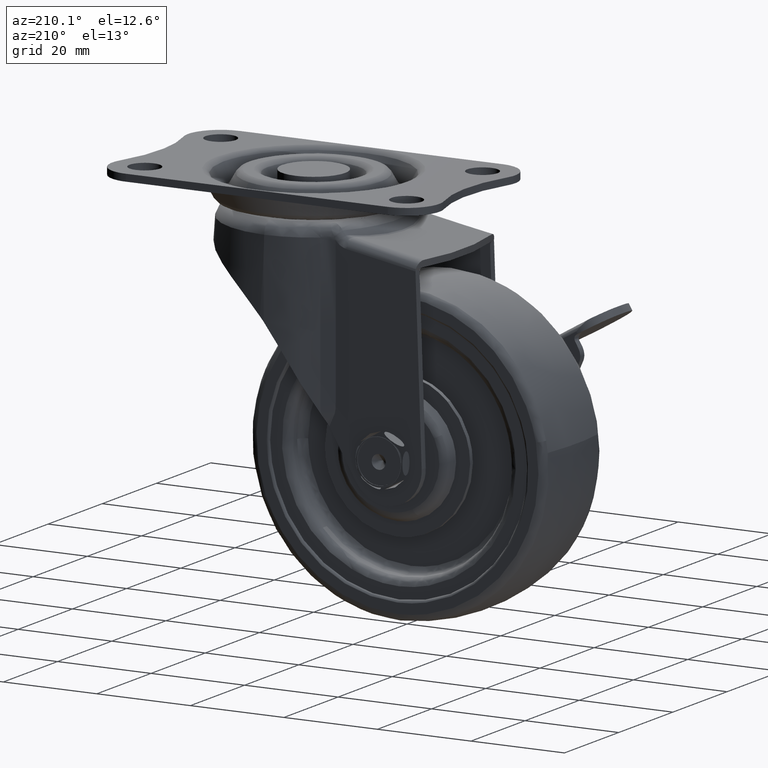
[diagram: clean part render]
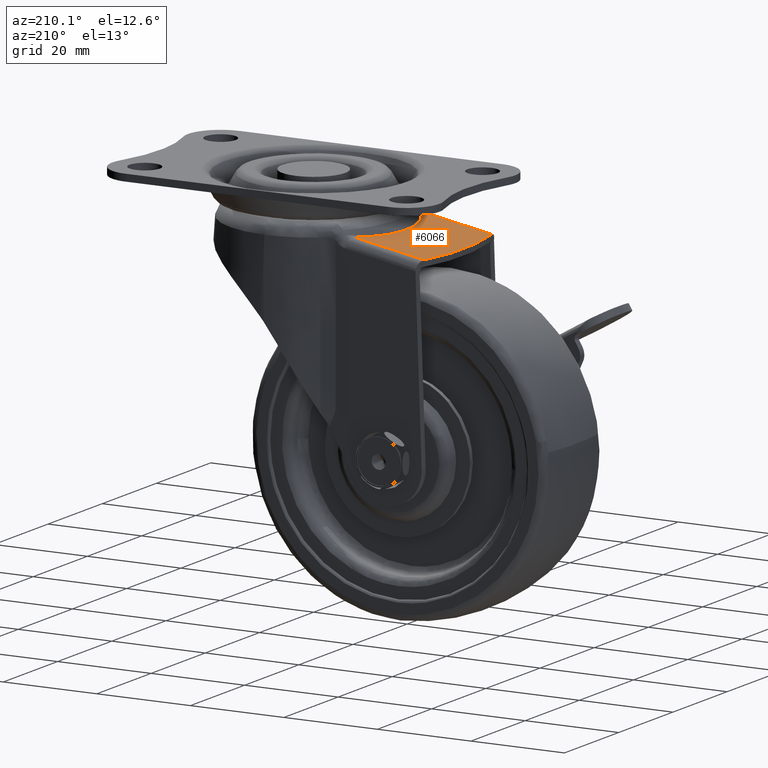
[diagram: same view with one face highlighted and labeled with its STEP entity id]
A machine part, auxiliary view. The second image highlights one B-rep face of the part: STEP entity #6066.
In plain terms, the highlighted face is a freeform B-spline surface patch.
Its self-contained STEP definition (entity closure, byte-faithful):
#3889=CARTESIAN_POINT('',(-15.797396065596800,-12.500016534822940,-7.205750666581940));
#3890=VERTEX_POINT('',#3889);
#3902=CARTESIAN_POINT('',(-30.858344562454050,-12.500016196939679,-9.861400890232220));
#3903=VERTEX_POINT('',#3902);
#3904=CARTESIAN_POINT('',(-30.858344562454050,-12.500016196939679,-9.861400890232220));
#3905=CARTESIAN_POINT('',(-15.797396065596800,-12.500016534822940,-7.205750666581940));
#3906=QUASI_UNIFORM_CURVE('',1,(#3904,#3905),.UNSPECIFIED.,.F.,.U.);
#3907=EDGE_CURVE('',#3903,#3890,#3906,.T.);
#4226=CARTESIAN_POINT('',(-15.797396065596800,12.500016534822940,-7.205750666581940));
#4227=VERTEX_POINT('',#4226);
#4256=CARTESIAN_POINT('',(-30.858344562454050,12.500016196939679,-9.861400890232220));
#4257=VERTEX_POINT('',#4256);
#4284=CARTESIAN_POINT('',(-15.797396065596800,12.500016534822940,-7.205750666581940));
#4285=CARTESIAN_POINT('',(-30.858344562454050,12.500016196939679,-9.861400890232220));
#4286=QUASI_UNIFORM_CURVE('',1,(#4284,#4285),.UNSPECIFIED.,.F.,.U.);
#4287=EDGE_CURVE('',#4227,#4257,#4286,.T.);
#5346=CARTESIAN_POINT('',(-15.797396065596800,-12.500016534822940,-7.205750666581940));
#5347=CARTESIAN_POINT('',(-16.431019511877839,-11.589009123239030,-7.317474795692936));
#5348=CARTESIAN_POINT('',(-16.991101389916459,-10.637728013396430,-7.416231639093590));
#5349=CARTESIAN_POINT('',(-17.722048673436031,-9.151018360559675,-7.545116439340984));
#5350=CARTESIAN_POINT('',(-17.947425716663581,-8.645442120927976,-7.584856205055553));
#5351=CARTESIAN_POINT('',(-18.257520781891259,-7.871760228052220,-7.639533933756149));
#5352=CARTESIAN_POINT('',(-18.356219037676809,-7.611310594589538,-7.656936972221938));
#5353=CARTESIAN_POINT('',(-18.544124468475630,-7.085213710585122,-7.690069527221624));
#5354=CARTESIAN_POINT('',(-18.633469726793528,-6.819069593156567,-7.705823391388159));
#5355=CARTESIAN_POINT('',(-19.052532268318139,-5.486552002373133,-7.779714881422381));
#5356=CARTESIAN_POINT('',(-19.302463321965529,-4.408133163241630,-7.823784142621692));
#5357=CARTESIAN_POINT('',(-19.637832411015861,-2.227379382404890,-7.882918322081666));
#5358=CARTESIAN_POINT('',(-19.723265776870221,-1.125043761779971,-7.897982416945371));
#5359=CARTESIAN_POINT('',(-19.723927488590739,0.268306302521541,-7.898099093704725));
#5360=CARTESIAN_POINT('',(-19.718724563259379,0.547752024953408,-7.897181684435043));
#5361=CARTESIAN_POINT('',(-19.702764308677530,0.968106412980693,-7.894367481922493));
#5362=CARTESIAN_POINT('',(-19.696082999785361,1.108359124432784,-7.893189395684097));
#5363=CARTESIAN_POINT('',(-19.680067190328181,1.387930629477330,-7.890365397414752));
#5364=CARTESIAN_POINT('',(-19.670727230923109,1.527412606714259,-7.888718522850202));
#5365=CARTESIAN_POINT('',(-19.617428306126438,2.223317560738297,-7.879320554407463));
#5366=CARTESIAN_POINT('',(-19.553701918426562,2.775232573656234,-7.868083956575569));
#5367=CARTESIAN_POINT('',(-19.300867730912451,4.416917174046497,-7.823502798957091));
#5368=CARTESIAN_POINT('',(-19.050444504131971,5.492703768415134,-7.779346754964474));
#5369=CARTESIAN_POINT('',(-18.551996830374840,7.078376173043925,-7.691457627054668));
#5370=CARTESIAN_POINT('',(-18.365293910613438,7.602246367682567,-7.658537105846516));
#5371=CARTESIAN_POINT('',(-18.105550903867069,8.251071714977552,-7.612737739001918));
#5372=CARTESIAN_POINT('',(-18.052224129805250,8.380668967606894,-7.603334858282329));
#5373=CARTESIAN_POINT('',(-17.943335812390160,8.638255367698555,-7.584135049391945));
#5374=CARTESIAN_POINT('',(-17.776576551804880,9.022431333360302,-7.554731105600383));
#5375=CARTESIAN_POINT('',(-17.599641480256231,9.400063622830221,-7.523532903844945));
#5376=CARTESIAN_POINT('',(-16.987608279313751,10.644530032535020,-7.415615713866888));
#5377=CARTESIAN_POINT('',(-16.427158951119068,11.594559737700580,-7.316794079423381));
#5378=CARTESIAN_POINT('',(-15.797396065596800,12.500016534822940,-7.205750666581940));
#5379=B_SPLINE_CURVE_WITH_KNOTS('',3,(#5346,#5347,#5348,#5349,#5350,#5351,#5352,#5353,#5354,#5355,#5356,#5357,#5358,#5359,#5360,#5361,#5362,#5363,#5364,#5365,#5366,#5367,#5368,#5369,#5370,#5371,#5372,#5373,#5374,#5375,#5376,#5377,#5378),.UNSPECIFIED.,.F.,.U.,(4,2,2,2,2,2,2,2,2,2,2,2,2,2,1,2,4),(0.0,0.125000000000000,0.187500000000000,0.218750000000001,0.250000000000001,0.375000000000001,0.500000000000001,0.531250000000002,0.546875000000002,0.562500000000002,0.625000000000002,0.750000000000002,0.812500000000002,0.828125000000002,0.843750000000002,0.875000000000001,1.0),.UNSPECIFIED.);
#5380=EDGE_CURVE('',#3890,#4227,#5379,.T.);
#6047=CARTESIAN_POINT('',(-32.809797158004571,13.748767814196730,-10.205488057607591));
#6048=CARTESIAN_POINT('',(-14.988044046477221,13.748767814196730,-7.063092203467746));
#6049=CARTESIAN_POINT('',(-32.809797158004571,-13.748766920125879,-10.205488057607591));
#6050=CARTESIAN_POINT('',(-14.988044046477221,-13.748766920125879,-7.063092203467746));
#6051=B_SPLINE_SURFACE_WITH_KNOTS('',1,1,((#6047,#6049),(#6048,#6050)),.UNSPECIFIED.,.F.,.F.,.U.,(2,2),(2,2),(0.0,18.096671950177750),(0.0,27.497534734322610),.UNSPECIFIED.);
#6052=ORIENTED_EDGE('',*,*,#5380,.T.);
#6053=ORIENTED_EDGE('',*,*,#4287,.T.);
#6054=CARTESIAN_POINT('',(-30.858344562454050,12.500016196939679,-9.861400890232220));
#6055=CARTESIAN_POINT('',(-31.309188454910469,10.054359118454640,-9.940895313123932));
#6056=CARTESIAN_POINT('',(-31.962628321718210,4.982644472062059,-10.056112189686891));
#6057=CARTESIAN_POINT('',(-32.106091183531092,-3.411194992856641,-10.081408079455040));
#6058=CARTESIAN_POINT('',(-31.451661123094439,-9.282060635276322,-9.966016608376291));
#6059=CARTESIAN_POINT('',(-30.858344562454050,-12.500016196939679,-9.861400890232220));
#6060=B_SPLINE_CURVE_WITH_KNOTS('',3,(#6054,#6055,#6056,#6057,#6058,#6059),.UNSPECIFIED.,.F.,.U.,(4,1,1,4),(5.909726E-010,7.464414000355834,15.321691723837111,25.143289194458049),.UNSPECIFIED.);
#6061=EDGE_CURVE('',#4257,#3903,#6060,.T.);
#6062=ORIENTED_EDGE('',*,*,#6061,.T.);
#6063=ORIENTED_EDGE('',*,*,#3907,.T.);
#6064=EDGE_LOOP('',(#6052,#6053,#6062,#6063));
#6065=FACE_OUTER_BOUND('',#6064,.T.);
#6066=ADVANCED_FACE('',(#6065),#6051,.F.);